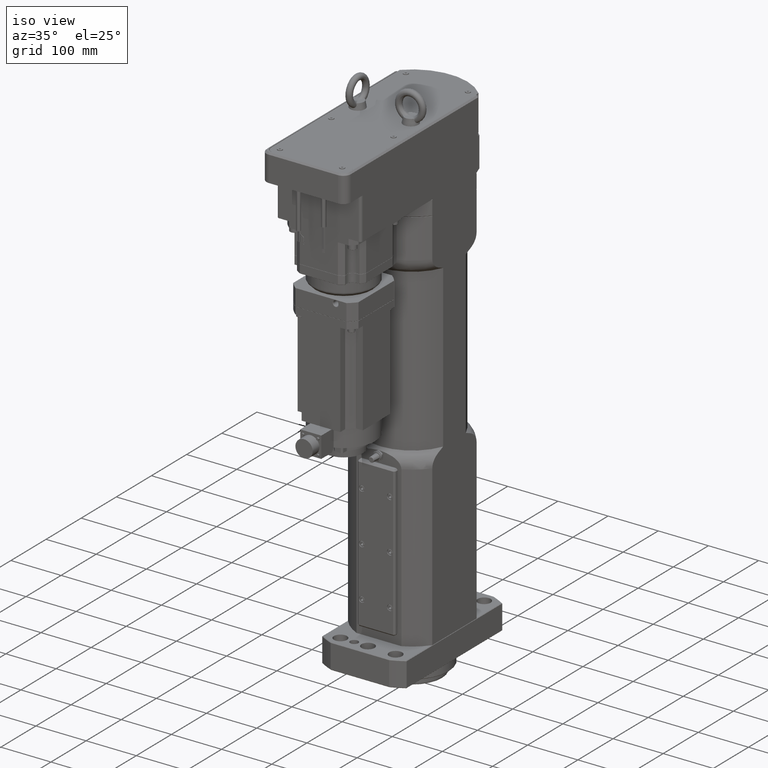
[diagram: clean part render]
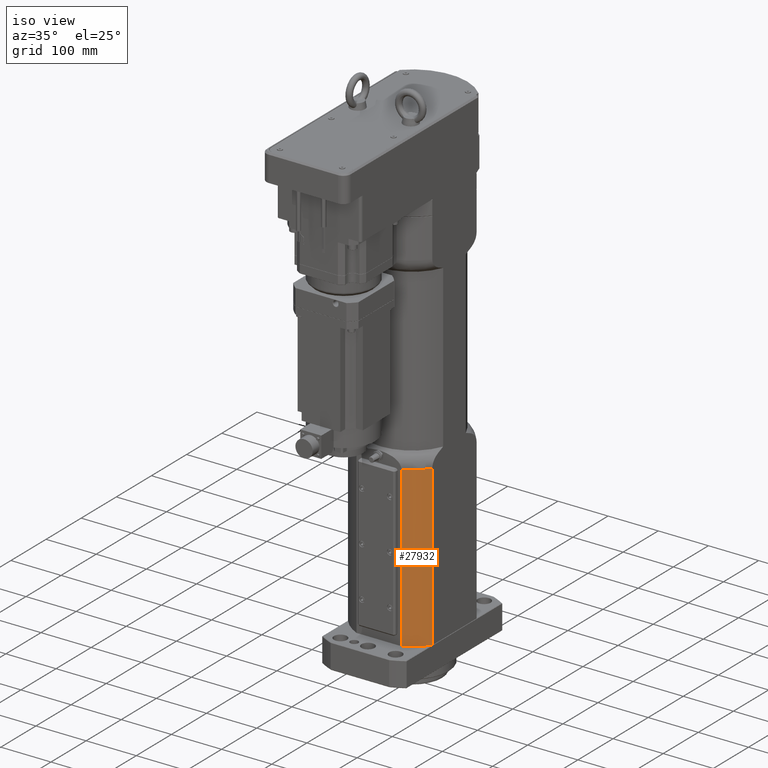
[diagram: same view with one face highlighted and labeled with its STEP entity id]
A machine part, iso view. The second image highlights one B-rep face of the part: STEP entity #27932.
In plain terms, the highlighted cylindrical surface (partial cylindrical patch) has radius 105 mm, axis along (-0, -0, -1).
Its self-contained STEP definition (entity closure, byte-faithful):
#2163=LINE('',#46335,#3782);
#2180=LINE('',#46510,#3799);
#3782=VECTOR('',#35996,10.);
#3799=VECTOR('',#36067,10.);
#5181=CYLINDRICAL_SURFACE('',#30518,105.);
#6273=FACE_OUTER_BOUND('',#8182,.T.);
#8182=EDGE_LOOP('',(#20931,#20932,#20933,#20934,#20935));
#9871=CIRCLE('',#30234,105.);
#9925=CIRCLE('',#30328,105.);
#10006=CIRCLE('',#30500,105.);
#11897=VERTEX_POINT('',#45471);
#11898=VERTEX_POINT('',#45473);
#11952=VERTEX_POINT('',#45648);
#12115=VERTEX_POINT('',#46334);
#12126=VERTEX_POINT('',#46424);
#14991=EDGE_CURVE('',#11897,#11898,#9871,.T.);
#15073=EDGE_CURVE('',#11952,#11897,#9925,.T.);
#15309=EDGE_CURVE('',#12115,#11898,#2163,.T.);
#15329=EDGE_CURVE('',#12115,#12126,#10006,.T.);
#15351=EDGE_CURVE('',#11952,#12126,#2180,.T.);
#20931=ORIENTED_EDGE('',*,*,#15309,.T.);
#20932=ORIENTED_EDGE('',*,*,#14991,.F.);
#20933=ORIENTED_EDGE('',*,*,#15073,.F.);
#20934=ORIENTED_EDGE('',*,*,#15351,.T.);
#20935=ORIENTED_EDGE('',*,*,#15329,.F.);
#27932=ADVANCED_FACE('',(#6273),#5181,.T.);
#30234=AXIS2_PLACEMENT_3D('',#45474,#35325,#35326);
#30328=AXIS2_PLACEMENT_3D('',#45650,#35541,#35542);
#30500=AXIS2_PLACEMENT_3D('',#46425,#36032,#36033);
#30518=AXIS2_PLACEMENT_3D('',#46555,#36083,#36084);
#35325=DIRECTION('center_axis',(-1.55993471463611E-15,-6.00545913593838E-31,
-1.));
#35326=DIRECTION('ref_axis',(1.,-3.8857805861883E-16,-1.55993471463611E-15));
#35541=DIRECTION('center_axis',(-1.55993471463611E-15,-6.00545913593838E-31,
-1.));
#35542=DIRECTION('ref_axis',(1.,-3.8857805861883E-16,-1.55993471463611E-15));
#35996=DIRECTION('',(-1.55993471463611E-15,-6.00545913593838E-31,-1.));
#36032=DIRECTION('center_axis',(1.55993471463611E-15,6.00545913593838E-31,
1.));
#36033=DIRECTION('ref_axis',(-5.49390323586493E-16,-1.,1.45755895124158E-30));
#36067=DIRECTION('',(1.55993471463611E-15,6.00545913593838E-31,1.));
#36083=DIRECTION('center_axis',(-1.55993471463611E-15,-6.00545913593838E-31,
-1.));
#36084=DIRECTION('ref_axis',(1.,-3.8857805861883E-16,-1.55993471463611E-15));
#45471=CARTESIAN_POINT('',(83.0000000000409,-64.3117407631994,49.9999999999579));
#45473=CARTESIAN_POINT('',(44.7213595499942,-95.,49.9999999999579));
#45474=CARTESIAN_POINT('Origin',(-1.53614763235587E-12,-4.55946577431017E-28,
49.9999999999579));
#45648=CARTESIAN_POINT('',(83.9999999999984,-63.0000000000001,49.9999999999578));
#45650=CARTESIAN_POINT('Origin',(-1.53614763235587E-12,-4.55946577431017E-28,
49.9999999999579));
#46334=CARTESIAN_POINT('',(44.7213595499947,-95.,368.573593128765));
#46335=CARTESIAN_POINT('',(44.7213595499954,-95.,822.999999999958));
#46424=CARTESIAN_POINT('',(83.9999999999989,-63.0000000000001,368.573593128765));
#46425=CARTESIAN_POINT('Origin',(-1.03919362526789E-12,-2.64628507898606E-28,
368.573593128765));
#46510=CARTESIAN_POINT('',(83.9999999999996,-63.0000000000001,822.999999999958));
#46555=CARTESIAN_POINT('Origin',(-3.30318097942159E-13,8.2754137770194E-30,
822.999999999958));